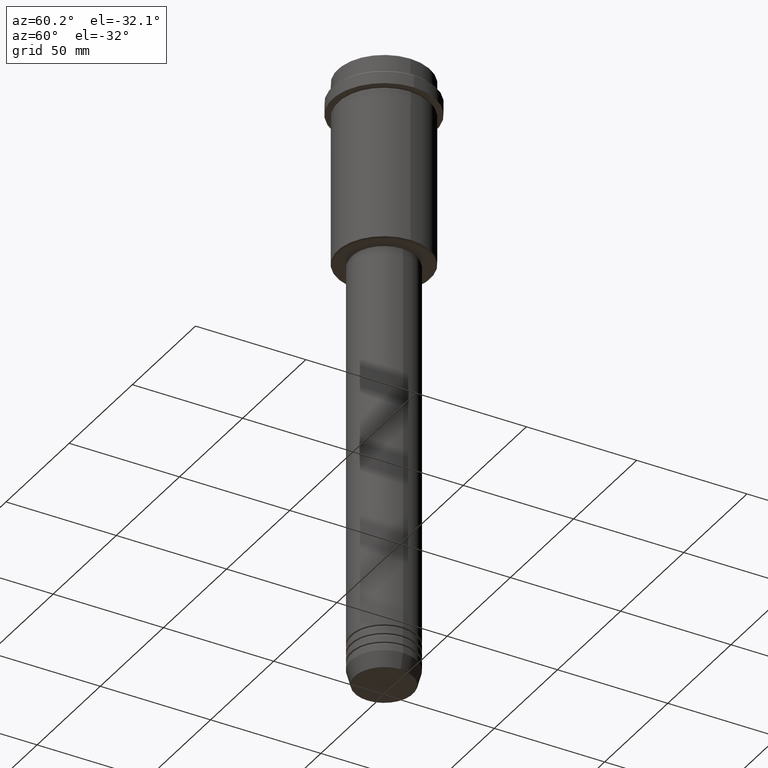
[diagram: clean part render]
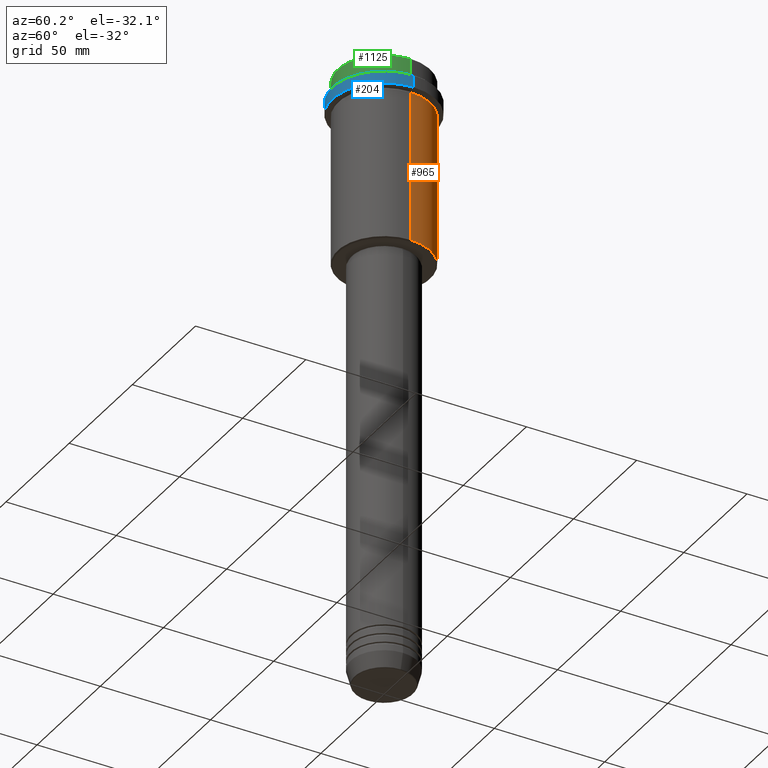
[diagram: same view with three faces highlighted in distinct colors, each labeled with its STEP entity id]
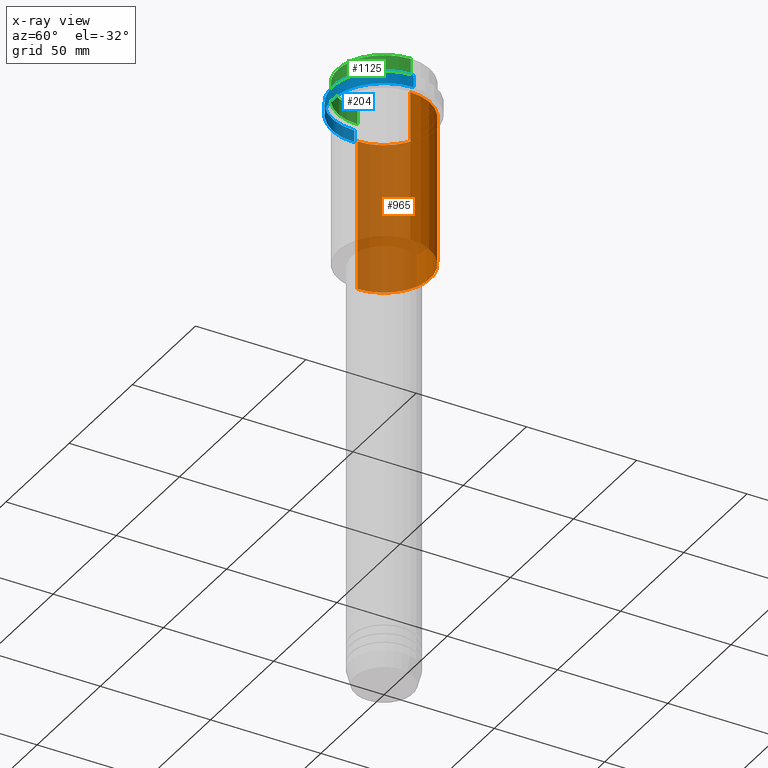
[diagram: x-ray of the same camera — body ghosted, the three highlighted faces saturated]
A machine part, auxiliary view with three faces highlighted in distinct colors.
The next image is the same camera in x-ray (body ghosted, the three faces saturated) — at least one of them is partly hidden behind the body in this view.
Their STEP definitions:

[orange] entity #965 — the highlighted cylindrical surface (partial cylindrical patch) has radius 21 mm, axis along (-0, -0, 1).
#22 = CYLINDRICAL_SURFACE ( 'NONE', #846, 20.99999999999999645 ) ;
#27 = CIRCLE ( 'NONE', #745, 20.99999999999999645 ) ;
#64 = ORIENTED_EDGE ( 'NONE', *, *, #859, .T. ) ;
#116 = LINE ( 'NONE', #894, #1002 ) ;
#157 = ORIENTED_EDGE ( 'NONE', *, *, #1257, .F. ) ;
#208 = ORIENTED_EDGE ( 'NONE', *, *, #223, .T. ) ;
#223 = EDGE_CURVE ( 'NONE', #839, #632, #758, .T. ) ;
#227 = DIRECTION ( 'NONE',  ( -1.000000000000000000, 0.000000000000000000, 0.000000000000000000 ) ) ;
#330 = DIRECTION ( 'NONE',  ( 1.000000000000000000, 0.000000000000000000, 0.000000000000000000 ) ) ;
#334 = CARTESIAN_POINT ( 'NONE',  ( 0.000000000000000000, 0.000000000000000000, -84.49999999999994316 ) ) ;
#394 = ORIENTED_EDGE ( 'NONE', *, *, #578, .F. ) ;
#406 = VECTOR ( 'NONE', #973, 1000.000000000000000 ) ;
#438 = DIRECTION ( 'NONE',  ( -0.000000000000000000, -0.000000000000000000, 1.000000000000000000 ) ) ;
#445 = DIRECTION ( 'NONE',  ( -0.000000000000000000, -0.000000000000000000, 1.000000000000000000 ) ) ;
#456 = DIRECTION ( 'NONE',  ( 1.000000000000000000, 0.000000000000000000, 0.000000000000000000 ) ) ;
#528 = CARTESIAN_POINT ( 'NONE',  ( -20.99999999999999645, 2.571758278209441267E-15, 0.000000000000000000 ) ) ;
#558 = CARTESIAN_POINT ( 'NONE',  ( 0.000000000000000000, 0.000000000000000000, -16.00000000000000355 ) ) ;
#577 = FACE_OUTER_BOUND ( 'NONE', #961, .T. ) ;
#578 = EDGE_CURVE ( 'NONE', #619, #632, #721, .T. ) ;
#603 = AXIS2_PLACEMENT_3D ( 'NONE', #558, #438, #330 ) ;
#619 = VERTEX_POINT ( 'NONE', #1069 ) ;
#632 = VERTEX_POINT ( 'NONE', #1414 ) ;
#721 = CIRCLE ( 'NONE', #603, 20.99999999999999645 ) ;
#745 = AXIS2_PLACEMENT_3D ( 'NONE', #334, #445, #227 ) ;
#758 = LINE ( 'NONE', #528, #406 ) ;
#810 = CARTESIAN_POINT ( 'NONE',  ( 20.99999999999999645, 0.000000000000000000, -84.49999999999994316 ) ) ;
#839 = VERTEX_POINT ( 'NONE', #1317 ) ;
#846 = AXIS2_PLACEMENT_3D ( 'NONE', #1235, #1017, #456 ) ;
#859 = EDGE_CURVE ( 'NONE', #1370, #839, #27, .T. ) ;
#894 = CARTESIAN_POINT ( 'NONE',  ( 20.99999999999999645, 0.000000000000000000, 0.000000000000000000 ) ) ;
#961 = EDGE_LOOP ( 'NONE', ( #64, #208, #394, #157 ) ) ;
#965 = ADVANCED_FACE ( 'NONE', ( #577 ), #22, .T. ) ;
#973 = DIRECTION ( 'NONE',  ( -0.000000000000000000, -0.000000000000000000, 1.000000000000000000 ) ) ;
#1002 = VECTOR ( 'NONE', #1105, 1000.000000000000000 ) ;
#1017 = DIRECTION ( 'NONE',  ( -0.000000000000000000, -0.000000000000000000, 1.000000000000000000 ) ) ;
#1069 = CARTESIAN_POINT ( 'NONE',  ( 20.99999999999999645, 0.000000000000000000, -16.00000000000000355 ) ) ;
#1105 = DIRECTION ( 'NONE',  ( -0.000000000000000000, -0.000000000000000000, 1.000000000000000000 ) ) ;
#1235 = CARTESIAN_POINT ( 'NONE',  ( 0.000000000000000000, 0.000000000000000000, 0.000000000000000000 ) ) ;
#1257 = EDGE_CURVE ( 'NONE', #1370, #619, #116, .T. ) ;
#1317 = CARTESIAN_POINT ( 'NONE',  ( -20.99999999999999645, 2.571758278209441267E-15, -84.49999999999994316 ) ) ;
#1370 = VERTEX_POINT ( 'NONE', #810 ) ;
#1414 = CARTESIAN_POINT ( 'NONE',  ( -20.99999999999999645, 2.571758278209441267E-15, -16.00000000000000355 ) ) ;

[blue] entity #204 — the highlighted cylindrical surface (partial cylindrical patch) has radius 23.5 mm, axis along (-0, -0, 1).
#57 = VERTEX_POINT ( 'NONE', #216 ) ;
#71 = VERTEX_POINT ( 'NONE', #992 ) ;
#83 = AXIS2_PLACEMENT_3D ( 'NONE', #1005, #1326, #802 ) ;
#197 = DIRECTION ( 'NONE',  ( 1.000000000000000000, 0.000000000000000000, 0.000000000000000000 ) ) ;
#204 = ADVANCED_FACE ( 'NONE', ( #1070 ), #749, .T. ) ;
#216 = CARTESIAN_POINT ( 'NONE',  ( -23.50000000000000000, 2.877919977996280320E-15, -9.499999999999973355 ) ) ;
#242 = DIRECTION ( 'NONE',  ( 1.000000000000000000, 0.000000000000000000, 0.000000000000000000 ) ) ;
#325 = AXIS2_PLACEMENT_3D ( 'NONE', #346, #1092, #242 ) ;
#338 = ORIENTED_EDGE ( 'NONE', *, *, #1303, .T. ) ;
#341 = DIRECTION ( 'NONE',  ( -0.000000000000000000, -0.000000000000000000, 1.000000000000000000 ) ) ;
#346 = CARTESIAN_POINT ( 'NONE',  ( 0.000000000000000000, 0.000000000000000000, -9.499999999999973355 ) ) ;
#364 = VERTEX_POINT ( 'NONE', #1244 ) ;
#419 = CIRCLE ( 'NONE', #83, 23.50000000000000355 ) ;
#428 = ORIENTED_EDGE ( 'NONE', *, *, #850, .T. ) ;
#430 = EDGE_CURVE ( 'NONE', #1284, #57, #555, .T. ) ;
#539 = CARTESIAN_POINT ( 'NONE',  ( 0.000000000000000000, 0.000000000000000000, 0.000000000000000000 ) ) ;
#544 = CARTESIAN_POINT ( 'NONE',  ( 23.50000000000000000, 0.000000000000000000, 0.000000000000000000 ) ) ;
#555 = LINE ( 'NONE', #902, #654 ) ;
#623 = ORIENTED_EDGE ( 'NONE', *, *, #1302, .T. ) ;
#654 = VECTOR ( 'NONE', #341, 1000.000000000000000 ) ;
#749 = CYLINDRICAL_SURFACE ( 'NONE', #924, 23.50000000000000000 ) ;
#753 = DIRECTION ( 'NONE',  ( -0.000000000000000000, -0.000000000000000000, 1.000000000000000000 ) ) ;
#802 = DIRECTION ( 'NONE',  ( 1.000000000000000000, 0.000000000000000000, 0.000000000000000000 ) ) ;
#850 = EDGE_CURVE ( 'NONE', #364, #71, #1293, .T. ) ;
#863 = DIRECTION ( 'NONE',  ( -0.000000000000000000, -0.000000000000000000, 1.000000000000000000 ) ) ;
#900 = CARTESIAN_POINT ( 'NONE',  ( -23.50000000000000711, 2.877919977996281109E-15, -15.00000000000000178 ) ) ;
#902 = CARTESIAN_POINT ( 'NONE',  ( -23.50000000000000000, 2.877919977996280320E-15, 0.000000000000000000 ) ) ;
#924 = AXIS2_PLACEMENT_3D ( 'NONE', #539, #863, #197 ) ;
#983 = ORIENTED_EDGE ( 'NONE', *, *, #430, .F. ) ;
#992 = CARTESIAN_POINT ( 'NONE',  ( 23.50000000000000000, 0.000000000000000000, -9.499999999999973355 ) ) ;
#1001 = EDGE_LOOP ( 'NONE', ( #983, #338, #428, #623 ) ) ;
#1005 = CARTESIAN_POINT ( 'NONE',  ( 0.000000000000000000, 0.000000000000000000, -15.00000000000000178 ) ) ;
#1062 = VECTOR ( 'NONE', #753, 1000.000000000000000 ) ;
#1070 = FACE_OUTER_BOUND ( 'NONE', #1001, .T. ) ;
#1092 = DIRECTION ( 'NONE',  ( 0.000000000000000000, 0.000000000000000000, -1.000000000000000000 ) ) ;
#1244 = CARTESIAN_POINT ( 'NONE',  ( 23.50000000000000355, 0.000000000000000000, -15.00000000000000178 ) ) ;
#1284 = VERTEX_POINT ( 'NONE', #900 ) ;
#1293 = LINE ( 'NONE', #544, #1062 ) ;
#1302 = EDGE_CURVE ( 'NONE', #71, #57, #1357, .T. ) ;
#1303 = EDGE_CURVE ( 'NONE', #1284, #364, #419, .T. ) ;
#1326 = DIRECTION ( 'NONE',  ( -0.000000000000000000, -0.000000000000000000, 1.000000000000000000 ) ) ;
#1357 = CIRCLE ( 'NONE', #325, 23.50000000000000000 ) ;

[green] entity #1125 — the highlighted cylindrical surface (partial cylindrical patch) has radius 21 mm, axis along (-0, -0, 1).
#62 = DIRECTION ( 'NONE',  ( -0.000000000000000000, -0.000000000000000000, 1.000000000000000000 ) ) ;
#86 = VERTEX_POINT ( 'NONE', #121 ) ;
#112 = VERTEX_POINT ( 'NONE', #1141 ) ;
#117 = EDGE_CURVE ( 'NONE', #1364, #86, #1353, .T. ) ;
#121 = CARTESIAN_POINT ( 'NONE',  ( 20.99999999999999645, 0.000000000000000000, -0.4999999999999796274 ) ) ;
#150 = DIRECTION ( 'NONE',  ( -0.000000000000000000, -0.000000000000000000, 1.000000000000000000 ) ) ;
#165 = AXIS2_PLACEMENT_3D ( 'NONE', #651, #1379, #751 ) ;
#167 = CARTESIAN_POINT ( 'NONE',  ( 20.99999999999999645, 0.000000000000000000, 0.000000000000000000 ) ) ;
#263 = ORIENTED_EDGE ( 'NONE', *, *, #401, .T. ) ;
#296 = EDGE_LOOP ( 'NONE', ( #370, #263, #1066, #422 ) ) ;
#344 = VECTOR ( 'NONE', #62, 1000.000000000000000 ) ;
#370 = ORIENTED_EDGE ( 'NONE', *, *, #389, .F. ) ;
#389 = EDGE_CURVE ( 'NONE', #112, #748, #830, .T. ) ;
#392 = CARTESIAN_POINT ( 'NONE',  ( -20.99999999999999645, 2.571758278209441267E-15, -0.4999999999999796274 ) ) ;
#401 = EDGE_CURVE ( 'NONE', #112, #1364, #407, .T. ) ;
#407 = CIRCLE ( 'NONE', #436, 20.99999999999999645 ) ;
#422 = ORIENTED_EDGE ( 'NONE', *, *, #1215, .T. ) ;
#436 = AXIS2_PLACEMENT_3D ( 'NONE', #1345, #150, #1025 ) ;
#607 = CARTESIAN_POINT ( 'NONE',  ( -20.99999999999999645, 2.571758278209441267E-15, 0.000000000000000000 ) ) ;
#651 = CARTESIAN_POINT ( 'NONE',  ( 0.000000000000000000, 0.000000000000000000, 0.000000000000000000 ) ) ;
#700 = AXIS2_PLACEMENT_3D ( 'NONE', #794, #1304, #1221 ) ;
#715 = CYLINDRICAL_SURFACE ( 'NONE', #165, 20.99999999999999645 ) ;
#748 = VERTEX_POINT ( 'NONE', #392 ) ;
#751 = DIRECTION ( 'NONE',  ( 1.000000000000000000, 0.000000000000000000, 0.000000000000000000 ) ) ;
#794 = CARTESIAN_POINT ( 'NONE',  ( 0.000000000000000000, 0.000000000000000000, -0.4999999999999796274 ) ) ;
#830 = LINE ( 'NONE', #607, #344 ) ;
#931 = CARTESIAN_POINT ( 'NONE',  ( 20.99999999999999645, 0.000000000000000000, -7.999999999999998224 ) ) ;
#1025 = DIRECTION ( 'NONE',  ( 1.000000000000000000, 0.000000000000000000, 0.000000000000000000 ) ) ;
#1066 = ORIENTED_EDGE ( 'NONE', *, *, #117, .T. ) ;
#1125 = ADVANCED_FACE ( 'NONE', ( #1245 ), #715, .T. ) ;
#1135 = VECTOR ( 'NONE', #1247, 1000.000000000000000 ) ;
#1141 = CARTESIAN_POINT ( 'NONE',  ( -20.99999999999999645, 2.571758278209441267E-15, -7.999999999999998224 ) ) ;
#1168 = CIRCLE ( 'NONE', #700, 20.99999999999999645 ) ;
#1215 = EDGE_CURVE ( 'NONE', #86, #748, #1168, .T. ) ;
#1221 = DIRECTION ( 'NONE',  ( 1.000000000000000000, 0.000000000000000000, 0.000000000000000000 ) ) ;
#1245 = FACE_OUTER_BOUND ( 'NONE', #296, .T. ) ;
#1247 = DIRECTION ( 'NONE',  ( -0.000000000000000000, -0.000000000000000000, 1.000000000000000000 ) ) ;
#1304 = DIRECTION ( 'NONE',  ( 0.000000000000000000, 0.000000000000000000, -1.000000000000000000 ) ) ;
#1345 = CARTESIAN_POINT ( 'NONE',  ( 0.000000000000000000, 0.000000000000000000, -7.999999999999998224 ) ) ;
#1353 = LINE ( 'NONE', #167, #1135 ) ;
#1364 = VERTEX_POINT ( 'NONE', #931 ) ;
#1379 = DIRECTION ( 'NONE',  ( -0.000000000000000000, -0.000000000000000000, 1.000000000000000000 ) ) ;